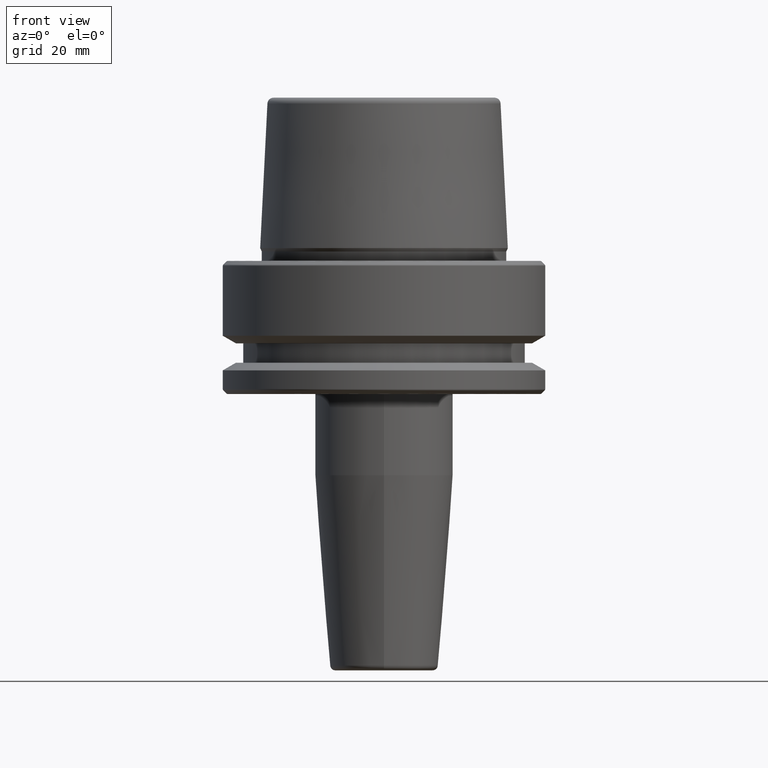
[diagram: clean part render]
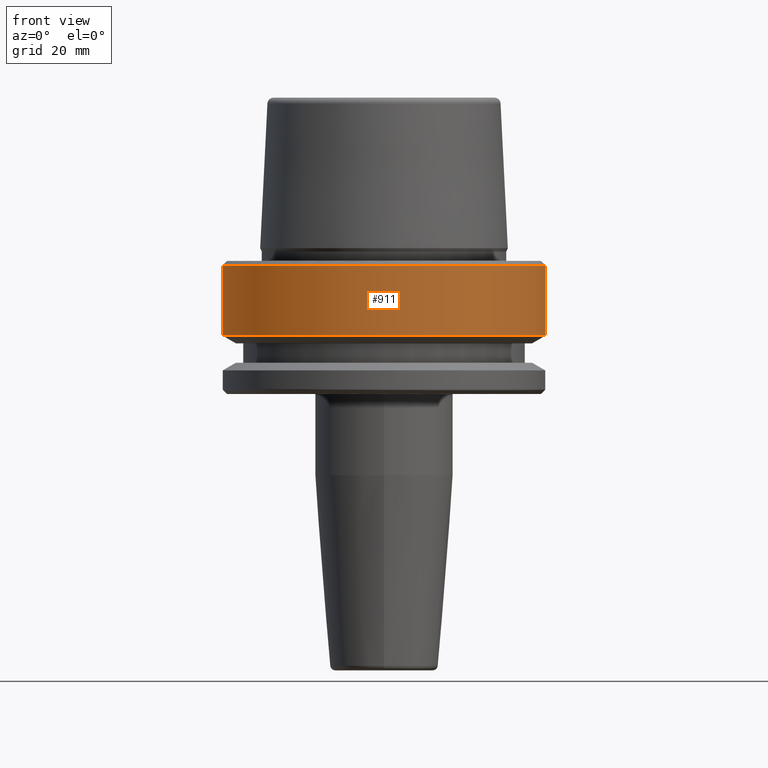
[diagram: same view with one face highlighted and labeled with its STEP entity id]
A machine part, front view. The second image highlights one B-rep face of the part: STEP entity #911.
In plain terms, the highlighted cylindrical surface (partial cylindrical patch) has radius 31.5 mm, axis along (-0, -0, 1).
Its self-contained STEP definition (entity closure, byte-faithful):
#115 = CARTESIAN_POINT ( 'NONE',  ( 31.50000000000000000, 0.0000000000000000000, -14.62250092524070100 ) ) ;
#118 = CYLINDRICAL_SURFACE ( 'NONE', #200, 31.50000000000000000 ) ;
#127 = EDGE_CURVE ( 'NONE', #292, #495, #815, .T. ) ;
#141 = FACE_OUTER_BOUND ( 'NONE', #376, .T. ) ;
#176 = DIRECTION ( 'NONE',  ( -0.0000000000000000000, -0.0000000000000000000, 1.000000000000000000 ) ) ;
#184 = AXIS2_PLACEMENT_3D ( 'NONE', #286, #979, #387 ) ;
#200 = AXIS2_PLACEMENT_3D ( 'NONE', #1060, #176, #471 ) ;
#286 = CARTESIAN_POINT ( 'NONE',  ( 0.0000000000000000000, 0.0000000000000000000, -0.9656854249492363700 ) ) ;
#292 = VERTEX_POINT ( 'NONE', #938 ) ;
#376 = EDGE_LOOP ( 'NONE', ( #896, #1156, #506, #1063 ) ) ;
#387 = DIRECTION ( 'NONE',  ( 1.000000000000000000, 0.0000000000000000000, 0.0000000000000000000 ) ) ;
#389 = CARTESIAN_POINT ( 'NONE',  ( 31.50000000000000000, 0.0000000000000000000, 78.96908074195309300 ) ) ;
#431 = EDGE_CURVE ( 'NONE', #532, #495, #736, .T. ) ;
#445 = CARTESIAN_POINT ( 'NONE',  ( 0.0000000000000000000, 0.0000000000000000000, -14.62250092524070100 ) ) ;
#471 = DIRECTION ( 'NONE',  ( 1.000000000000000000, 0.0000000000000000000, 0.0000000000000000000 ) ) ;
#473 = VECTOR ( 'NONE', #1077, 1000.000000000000000 ) ;
#479 = VECTOR ( 'NONE', #625, 1000.000000000000000 ) ;
#495 = VERTEX_POINT ( 'NONE', #1082 ) ;
#506 = ORIENTED_EDGE ( 'NONE', *, *, #431, .T. ) ;
#508 = VERTEX_POINT ( 'NONE', #700 ) ;
#510 = LINE ( 'NONE', #1103, #479 ) ;
#532 = VERTEX_POINT ( 'NONE', #115 ) ;
#545 = AXIS2_PLACEMENT_3D ( 'NONE', #445, #1132, #553 ) ;
#553 = DIRECTION ( 'NONE',  ( 1.000000000000000000, 0.0000000000000000000, 0.0000000000000000000 ) ) ;
#611 = EDGE_CURVE ( 'NONE', #508, #292, #510, .T. ) ;
#625 = DIRECTION ( 'NONE',  ( -0.0000000000000000000, -0.0000000000000000000, 1.000000000000000000 ) ) ;
#700 = CARTESIAN_POINT ( 'NONE',  ( -31.50000000000000000, 3.857637417314162700E-015, -14.62250092524070100 ) ) ;
#736 = LINE ( 'NONE', #389, #473 ) ;
#815 = CIRCLE ( 'NONE', #184, 31.50000000000000000 ) ;
#868 = CIRCLE ( 'NONE', #545, 31.50000000000000000 ) ;
#896 = ORIENTED_EDGE ( 'NONE', *, *, #611, .F. ) ;
#911 = ADVANCED_FACE ( 'NONE', ( #141 ), #118, .T. ) ;
#938 = CARTESIAN_POINT ( 'NONE',  ( -31.50000000000000000, 3.857637417314162700E-015, -0.9656854249492363700 ) ) ;
#979 = DIRECTION ( 'NONE',  ( -0.0000000000000000000, -0.0000000000000000000, 1.000000000000000000 ) ) ;
#1060 = CARTESIAN_POINT ( 'NONE',  ( 0.0000000000000000000, 0.0000000000000000000, 78.96908074195309300 ) ) ;
#1063 = ORIENTED_EDGE ( 'NONE', *, *, #127, .F. ) ;
#1077 = DIRECTION ( 'NONE',  ( -0.0000000000000000000, -0.0000000000000000000, 1.000000000000000000 ) ) ;
#1082 = CARTESIAN_POINT ( 'NONE',  ( 31.50000000000000000, 0.0000000000000000000, -0.9656854249492363700 ) ) ;
#1103 = CARTESIAN_POINT ( 'NONE',  ( -31.50000000000000000, 3.857637417314162700E-015, 78.96908074195309300 ) ) ;
#1132 = DIRECTION ( 'NONE',  ( -0.0000000000000000000, -0.0000000000000000000, 1.000000000000000000 ) ) ;
#1156 = ORIENTED_EDGE ( 'NONE', *, *, #1248, .T. ) ;
#1248 = EDGE_CURVE ( 'NONE', #508, #532, #868, .T. ) ;